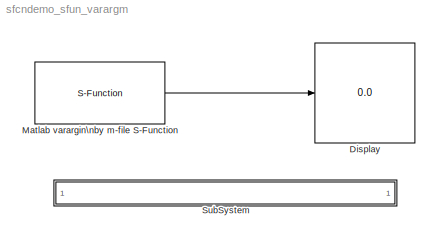
MODEL sfcndemo_sfun_varargm
KIND model
BLOCK [Display] Display
  Decimation = 1
  Ports = [1]
BLOCK [S-Function] Matlab varargin\nby m-file S-Function
  FunctionName = sfun_varargm
  MaskCallbackString = |||
  MaskDescription = This is a M-file S-function which demonstrates how to use Matlab varargin facility function.
  MaskDisplay = disp('Matlab\\nVarargin')
  MaskEnableString = on,on,on,on
  MaskIconFrame = on
  MaskIconOpaque = on
  MaskIconRotate = none
  MaskIconUnits = autoscale
  MaskPromptString = x1|x2|x3|x4
  MaskStyleString = edit,edit,edit,edit
  MaskTabNameString = ,,,
  MaskToolTipString = on,on,on,on
  MaskTunableValueString = on,on,on,on
  MaskType = S-function: sfun_varargin
  MaskValueString = 1|2|-3|2.3
  MaskVarAliasString = ,,,
  MaskVariables = x1=@1;x2=@2;x3=@3;x4=@4;
  MaskVisibilityString = on,on,on,on
  Parameters = x1,x2,x3,x4
  Ports = [0, 1]
BLOCK [SubSystem] SubSystem
  MaskDisplay = disp('matlabroot<path>');
  MaskIconFrame = on
  MaskIconOpaque = on
  MaskIconRotate = none
  MaskIconUnits = autoscale
  MinAlgLoopOccurrences = off
  OpenFcn = edit(fullfile(matlabroot,'toolbox','simulink','blocks','sfun_varargm.m'))
  Ports = []
  PropExecContextAcrossSSBoundary = on
  RTWSystemCode = Auto
  TreatAsAtomicUnit = off
LINE Matlab varargin\nby m-file S-Function:1 -> Display:1
note: 1 file-system path scrubbed to <path> (not preserved elsewhere — flat text is the only slx artifact)
